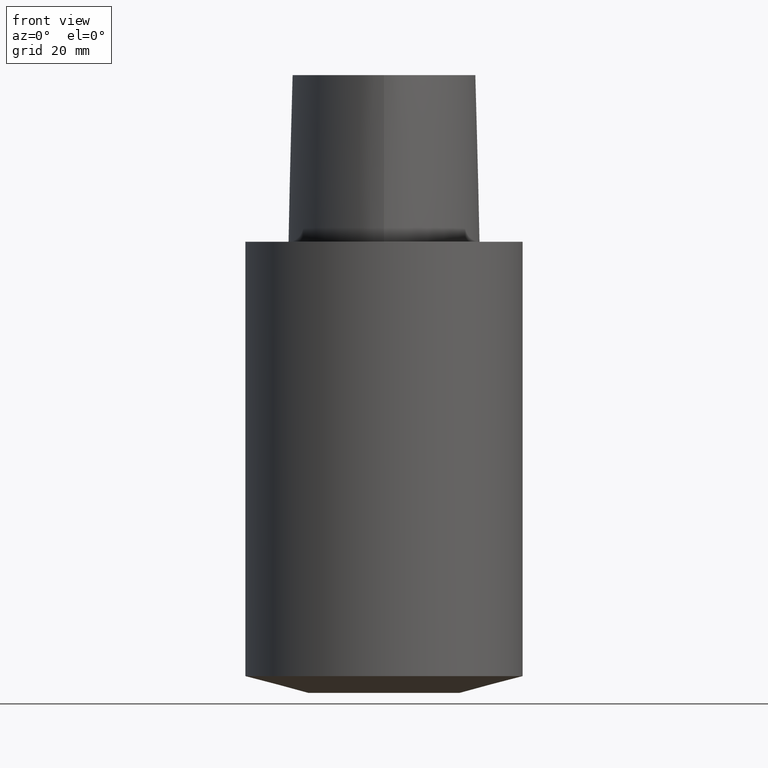
[diagram: clean part render]
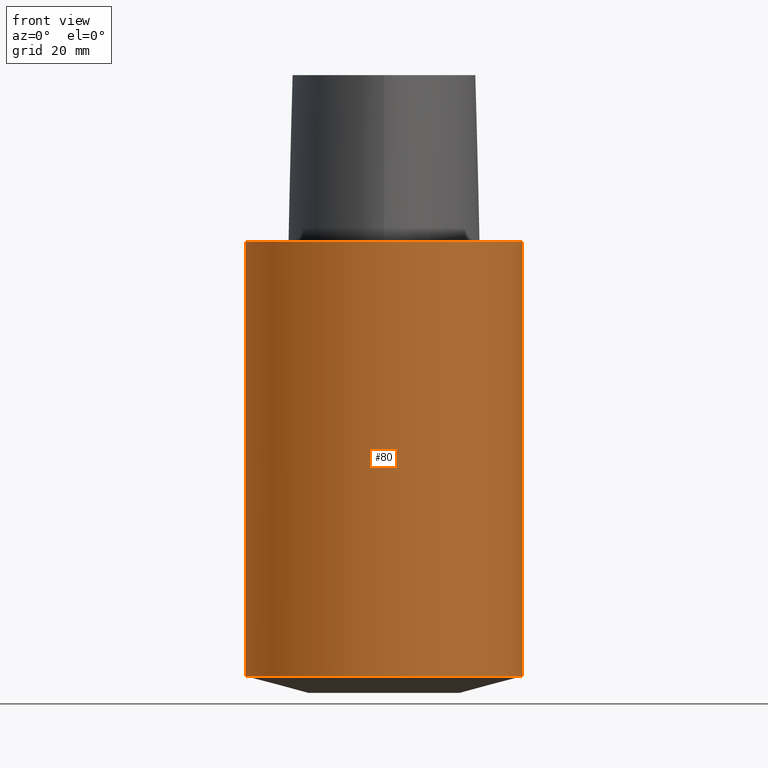
[diagram: same view with one face highlighted and labeled with its STEP entity id]
A machine part, front view. The second image highlights one B-rep face of the part: STEP entity #80.
In plain terms, the highlighted cylindrical surface (bore or boss wall) has radius 39.9925 mm, axis along (0, 0, -1).
Its self-contained STEP definition (entity closure, byte-faithful):
#80=ADVANCED_FACE('',(#94,#95),#96,.T.);
#94=FACE_BOUND('',#492,.T.);
#95=FACE_BOUND('',#493,.T.);
#96=CYLINDRICAL_SURFACE('',#494,39.9925);
#492=EDGE_LOOP('',(#517));
#493=EDGE_LOOP('',(#518));
#494=AXIS2_PLACEMENT_3D('',#519,#520,#521);
#517=ORIENTED_EDGE('',*,*,#525,.F.);
#518=ORIENTED_EDGE('',*,*,#527,.T.);
#519=CARTESIAN_POINT('',(3.83249921958519E-015,7.66499843917038E-015,-62.5894620759802));
#520=DIRECTION('',(6.12323399573677E-017,1.22464679914735E-016,-1.0));
#521=DIRECTION('',(-1.23259516440783E-032,1.0,1.22464679914735E-016));
#525=EDGE_CURVE('',#533,#533,#534,.T.);
#527=EDGE_CURVE('',#537,#537,#538,.T.);
#533=VERTEX_POINT('',#690);
#534=CIRCLE('',#691,39.9925);
#537=VERTEX_POINT('',#694);
#538=CIRCLE('',#695,39.9925);
#690=CARTESIAN_POINT('',(-4.92945621125802E-031,39.9925,4.89766871149005E-015));
#691=AXIS2_PLACEMENT_3D('',#696,#697,#698);
#694=CARTESIAN_POINT('',(7.66499843917038E-015,39.9925,-125.17892415196));
#695=AXIS2_PLACEMENT_3D('',#702,#703,#704);
#696=CARTESIAN_POINT('',(0.0,0.0,0.0));
#697=DIRECTION('',(-6.12323399573677E-017,-1.22464679914735E-016,1.0));
#698=DIRECTION('',(-1.23259516440783E-032,1.0,1.22464679914735E-016));
#702=CARTESIAN_POINT('',(7.66499843917038E-015,1.53299968783408E-014,-125.17892415196));
#703=DIRECTION('',(-6.12323399573677E-017,-1.22464679914735E-016,1.0));
#704=DIRECTION('',(-1.23259516440783E-032,1.0,1.22464679914735E-016));